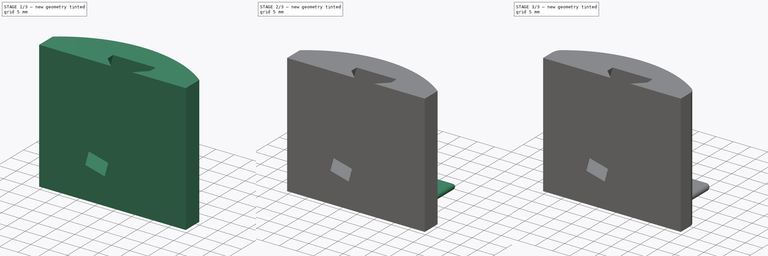
[diagram: build sequence overview — one tinted view per stage of 3, left to right]
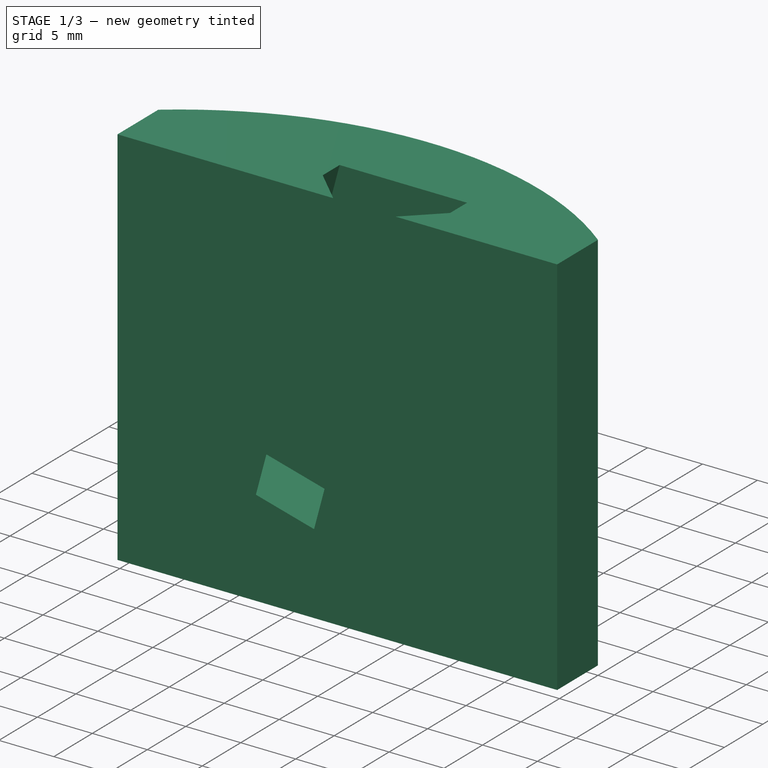
[diagram: stage 1 of 3 — iso view after this stage's code; geometry added in this stage tinted green]
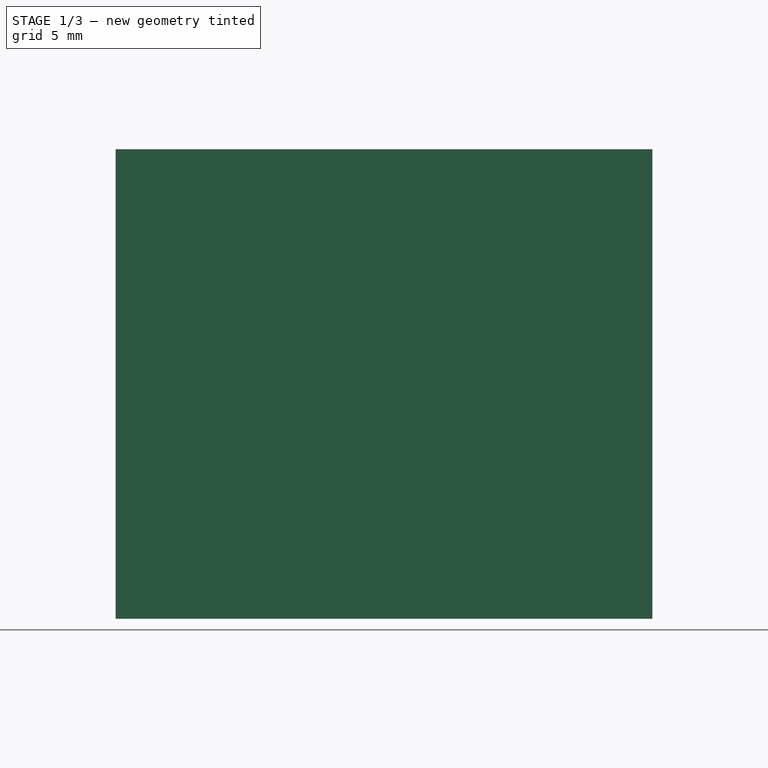
[diagram: stage 1 of 3 — front view after this stage's code; geometry added in this stage tinted green]
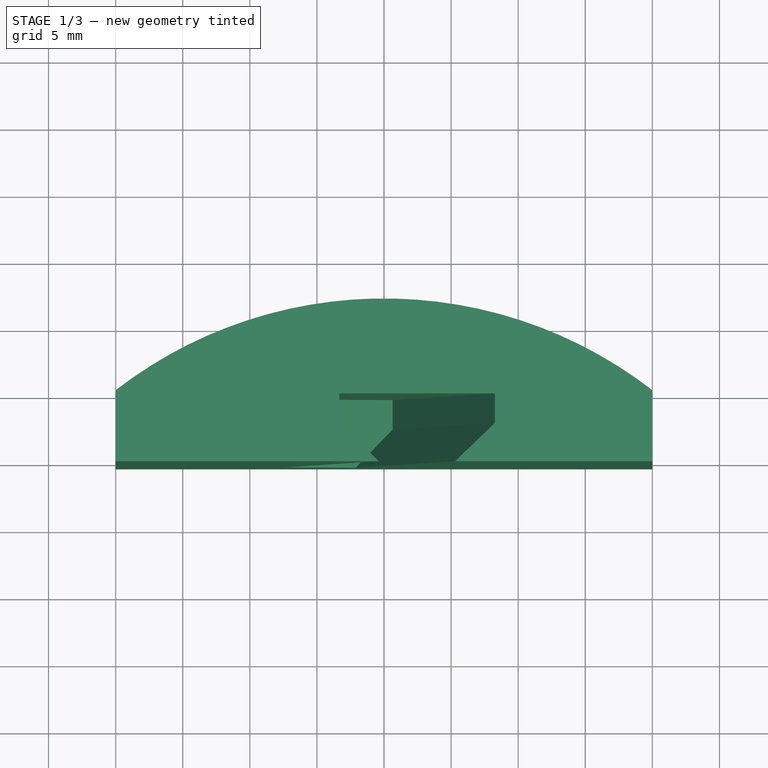
[diagram: stage 1 of 3 — top view after this stage's code; geometry added in this stage tinted green]
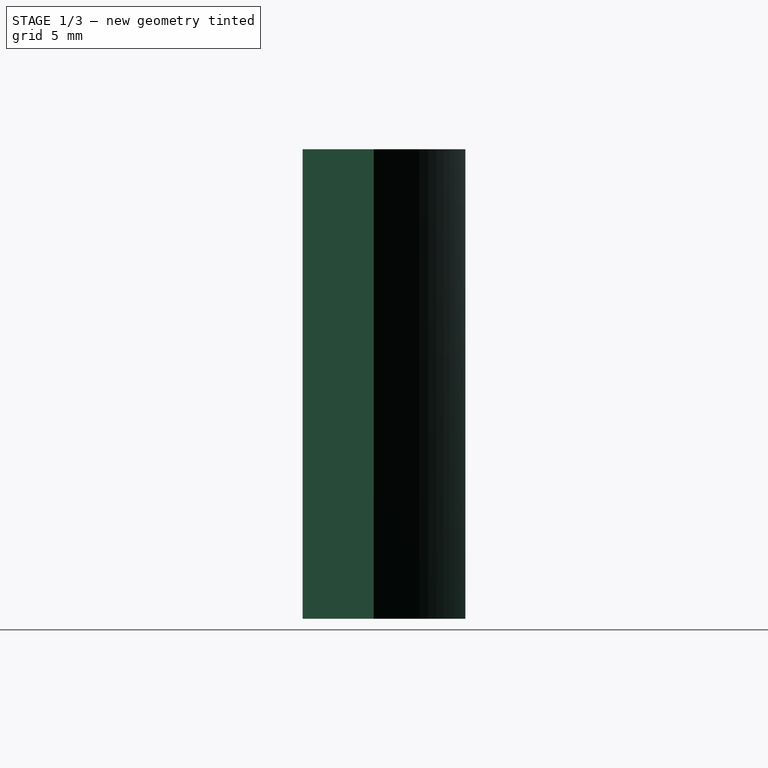
[diagram: stage 1 of 3 — right view after this stage's code; geometry added in this stage tinted green]
FCSTD DOCUMENT  (FreeCAD 0.18.4R)
Label: Soporte_v2
License: All rights reserved
LicenseURL: http://en.wikipedia.org/wiki/All_rights_reserved
objects: Sketcher::SketchObject×4, PartDesign::Fillet×3, PartDesign::Pad×2, PartDesign::Pocket×1, PartDesign::Body×1
note: 14 computed .brp shape members not serialized (recipe doc carries the construction recipe); baked Part::Feature solids carry a one-line shape summary decoded from their .brp

FEATURE [Sketcher::SketchObject] Sketch
  MapMode = 5
  Support = -> [XY_Plane]
  sketch-geometry (4):
    g0: ArcOfCircle CenterX=3.7294e-12 CenterY=-25.8394 CenterZ=0 NormalX=0 NormalY=0 NormalZ=1 AngleXU=0 Radius=32.6753 StartAngle=0.912103 EndAngle=2.22949
    g1: LineSegment StartX=20 StartY=2.8919e-12 StartZ=0 EndX=20 EndY=-5.3 EndZ=0
    g2: LineSegment StartX=-20 StartY=-5.3 StartZ=0 EndX=-20 EndY=-2.8777e-12 EndZ=0
    g3: LineSegment StartX=20 StartY=-5.3 StartZ=0 EndX=-20 EndY=-5.3 EndZ=0
  constraints (10):
    c: Symmetric(g0,g0,g-1)
    c: Distance(g0,g0) = 40
    c: Coincident(g3,g2)
    c: Vertical(g1)
    c: Vertical(g2)
    c: Distance(g2) = 5.3
    c: Coincident(g0,g2)
    c: Equal(g1,g2)
    c: Coincident(g0,g1)
    c: Coincident(g3,g1)
FEATURE [PartDesign::Pad] Pad
  Length = 35
  Length2 = 100
  Profile = -> Sketch
  Type = 0
FEATURE [Sketcher::SketchObject] Sketch001
  MapMode = 5
  Placement = pos=(0,0,35) rot=(0,0,1;0rad)
  Support = -> [Pad]
  sketch-geometry (6):
    g0: LineSegment StartX=-5.6 StartY=-1.22454 StartZ=0 EndX=5.6 EndY=-1.22454 EndZ=0
    g1: LineSegment StartX=5.6 StartY=-1.22454 StartZ=0 EndX=5.6 EndY=-3.12738 EndZ=0
    g2: LineSegment StartX=5.6 StartY=-3.12738 StartZ=0 EndX=2.20182 EndY=-6.32738 EndZ=0
    g3: LineSegment StartX=2.20182 StartY=-6.32738 StartZ=0 EndX=-2.20182 EndY=-6.32738 EndZ=0
    g4: LineSegment StartX=-2.20182 StartY=-6.32738 StartZ=0 EndX=-5.6 EndY=-3.12738 EndZ=0
    g5: LineSegment StartX=-5.6 StartY=-3.12738 StartZ=0 EndX=-5.6 EndY=-1.22454 EndZ=0
  constraints (13):
    c: Coincident(g0,g1)
    c: Coincident(g1,g2)
    c: Coincident(g2,g3)
    c: Coincident(g3,g4)
    c: Coincident(g4,g5)
    c: Coincident(g5,g0)
    c: Vertical(g5)
    c: Vertical(g1)
    c: Equal(g5,g1)
    c: Symmetric(g0,g0,g-2)
    c: Symmetric(g3,g2,g-2)
    c: Distance(g0) = 11.2
    c: DistanceY(g3,g4) = 3.2
FEATURE [Sketcher::SketchObject] Sketch002
  MapMode = 5
  Placement = pos=(3,0,37) rot=(0,1,0;0.261799rad)
  sketch-geometry (6):
    g0: LineSegment StartX=-5.6 StartY=-0.240433 StartZ=0 EndX=5.6 EndY=-0.240433 EndZ=0
    g1: LineSegment StartX=5.6 StartY=-0.240433 StartZ=0 EndX=5.6 EndY=-2.44043 EndZ=0
    g2: LineSegment StartX=5.6 StartY=-2.44043 StartZ=0 EndX=2.7 EndY=-5.34043 EndZ=0
    g3: LineSegment StartX=2.7 StartY=-5.34043 StartZ=0 EndX=-2.7 EndY=-5.34043 EndZ=0
    g4: LineSegment StartX=-2.7 StartY=-5.34043 StartZ=0 EndX=-5.6 EndY=-2.44043 EndZ=0
    g5: LineSegment StartX=-5.6 StartY=-2.44043 StartZ=0 EndX=-5.6 EndY=-0.240433 EndZ=0
  constraints (15):
    c: Coincident(g0,g1)
    c: Coincident(g1,g2)
    c: Coincident(g2,g3)
    c: Coincident(g3,g4)
    c: Coincident(g4,g5)
    c: Coincident(g5,g0)
    c: Vertical(g5)
    c: Vertical(g1)
    c: Angle(g4,g5) = 2.35619
    c: Symmetric(g0,g0,g-2)
    c: Symmetric(g3,g2,g-2)
    c: Distance(g0) = 11.2
    c: Equal(g5,g1)
    c: Distance(g5) = 2.2
    c: DistanceY(g3,g4) = 2.9
FEATURE [PartDesign::Pocket] Pocket
  BaseFeature = -> Pad
  Length = 30
  Length2 = 100
  Profile = -> Sketch002
  Type = 0
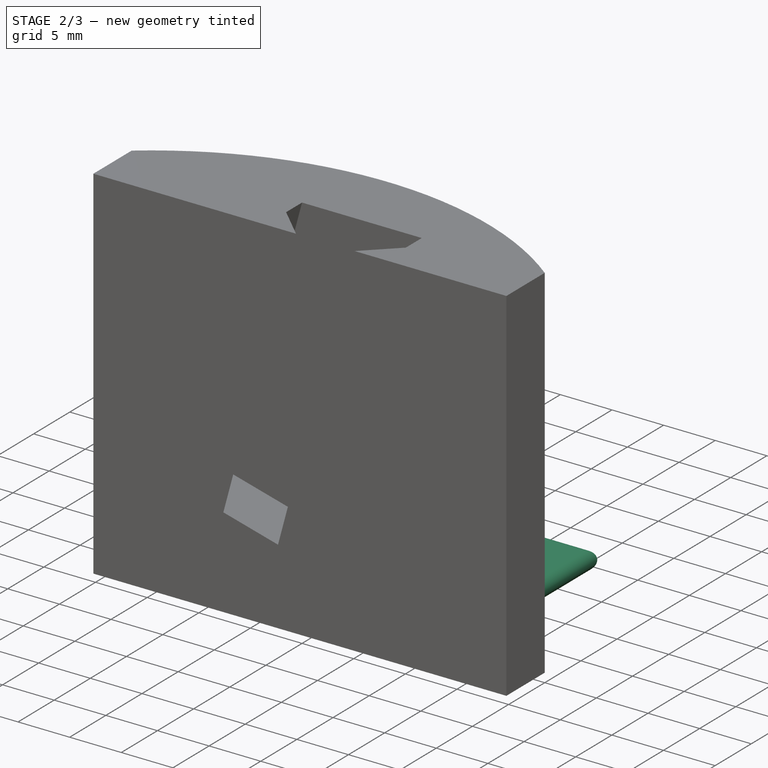
[diagram: stage 2 of 3 — iso view after this stage's code; geometry added in this stage tinted green]
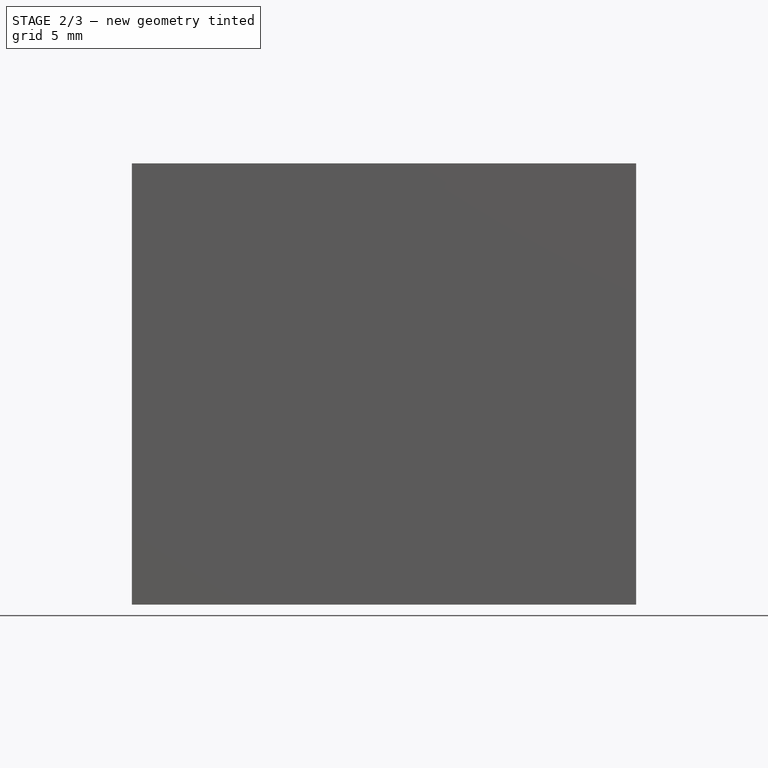
[diagram: stage 2 of 3 — front view after this stage's code; geometry added in this stage tinted green]
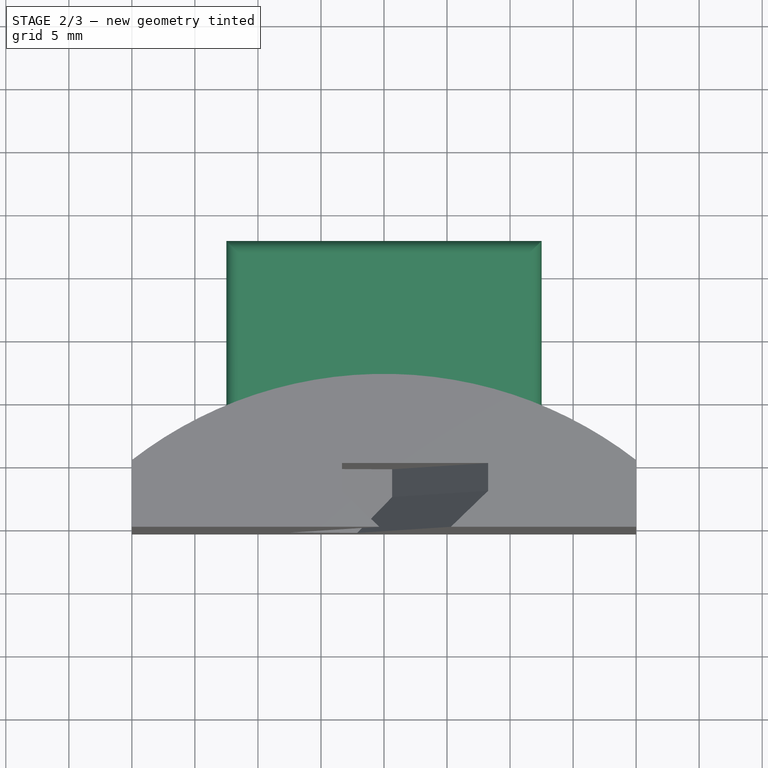
[diagram: stage 2 of 3 — top view after this stage's code; geometry added in this stage tinted green]
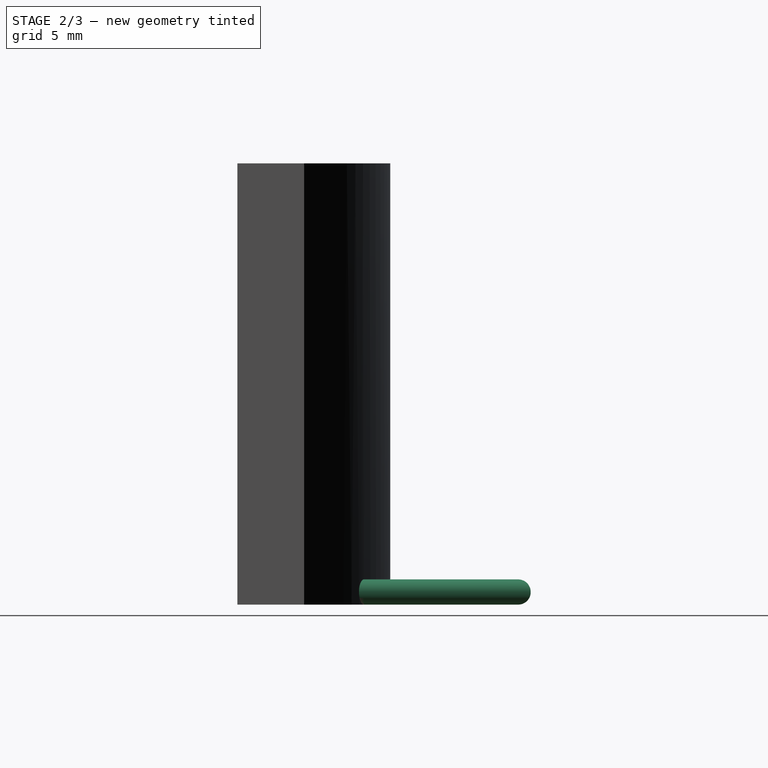
[diagram: stage 2 of 3 — right view after this stage's code; geometry added in this stage tinted green]
FEATURE [Sketcher::SketchObject] Sketch003
  MapMode = 5
  Placement = pos=(0,0,0) rot=(1,0,0;3.14159rad)
  Support = -> [Pocket]
  sketch-geometry (4):
    g0: LineSegment StartX=-12.5 StartY=-2.9706 StartZ=0 EndX=12.5 EndY=-2.9706 EndZ=0
    g1: LineSegment StartX=12.5 StartY=-2.9706 StartZ=0 EndX=12.5 EndY=-17.9706 EndZ=0
    g2: LineSegment StartX=12.5 StartY=-17.9706 StartZ=0 EndX=-12.5 EndY=-17.9706 EndZ=0
    g3: LineSegment StartX=-12.5 StartY=-17.9706 StartZ=0 EndX=-12.5 EndY=-2.9706 EndZ=0
  constraints (10):
    c: Coincident(g0,g1)
    c: Coincident(g1,g2)
    c: Coincident(g2,g3)
    c: Coincident(g3,g0)
    c: Horizontal(g2)
    c: Vertical(g1)
    c: Vertical(g3)
    c: Symmetric(g0,g0,g-2)
    c: Distance(g0) = 25
    c: Distance(g3) = 15
FEATURE [PartDesign::Pad] Pad001
  BaseFeature = -> Pocket
  Length = 2
  Length2 = 100
  Profile = -> Sketch003
  Reversed = true
  Type = 0
FEATURE [PartDesign::Fillet] Fillet
  Base = -> Pad001 [Edge18,Edge19,Edge17,Edge20,Edge37,Edge15]
  BaseFeature = -> Pad001
  Radius = 0.99
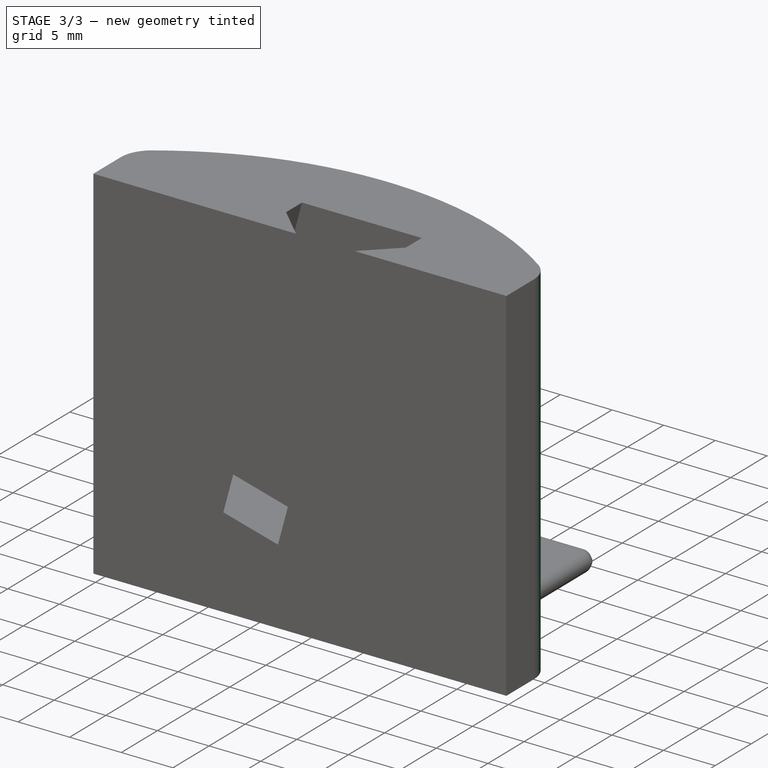
[diagram: stage 3 of 3 — iso view after this stage's code; geometry added in this stage tinted green]
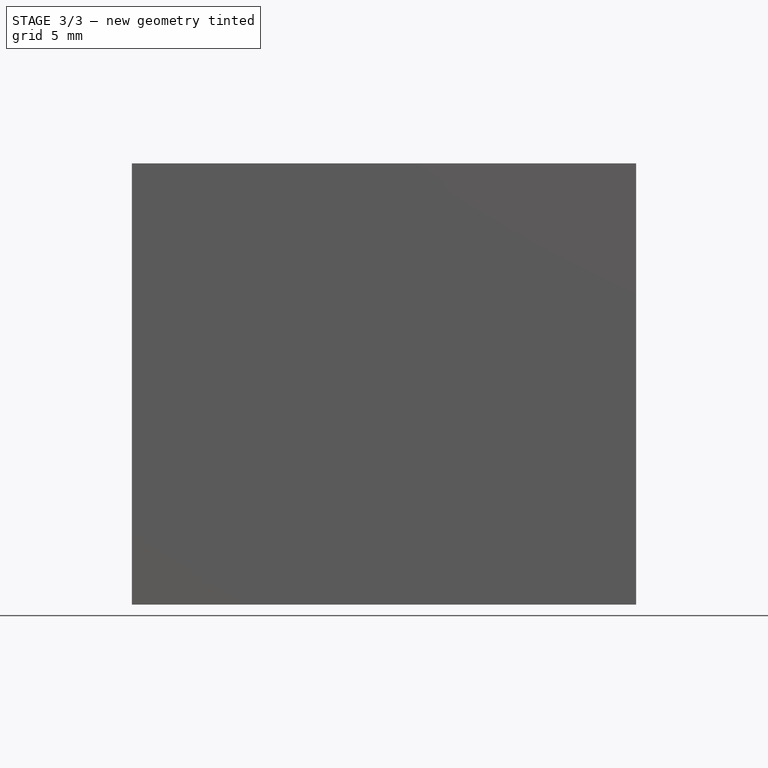
[diagram: stage 3 of 3 — front view after this stage's code; geometry added in this stage tinted green]
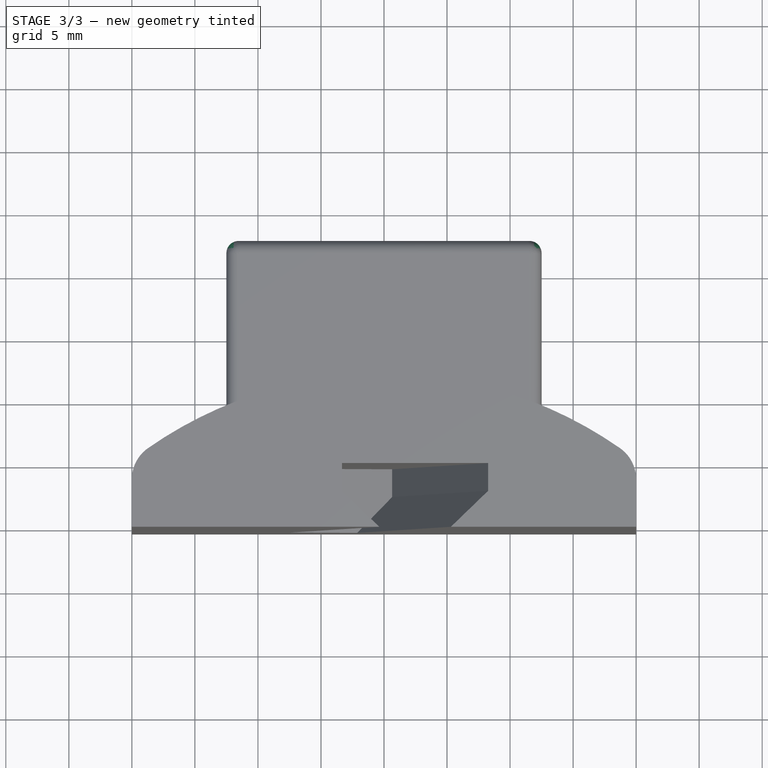
[diagram: stage 3 of 3 — top view after this stage's code; geometry added in this stage tinted green]
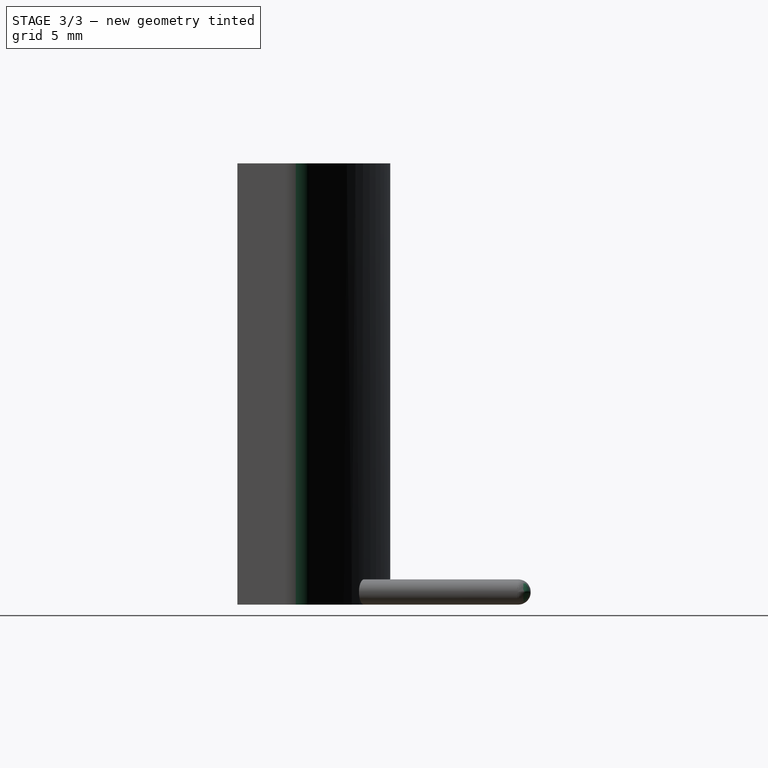
[diagram: stage 3 of 3 — right view after this stage's code; geometry added in this stage tinted green]
FEATURE [PartDesign::Fillet] Fillet001
  Base = -> Fillet [Edge28,Edge57,Edge51,Edge20]
  BaseFeature = -> Fillet
  Radius = 0.96
FEATURE [PartDesign::Fillet] Fillet002
  Base = -> Fillet001 [Edge25,Edge21]
  BaseFeature = -> Fillet001
  Radius = 3
FEATURE [PartDesign::Body] Body
  Group = -> [Sketch,Pad,Sketch001,Sketch002,Pocket,Sketch003,Pad001,Fillet,Fillet001,Fillet002]
  Origin = -> Origin
  Tip = -> Fillet002
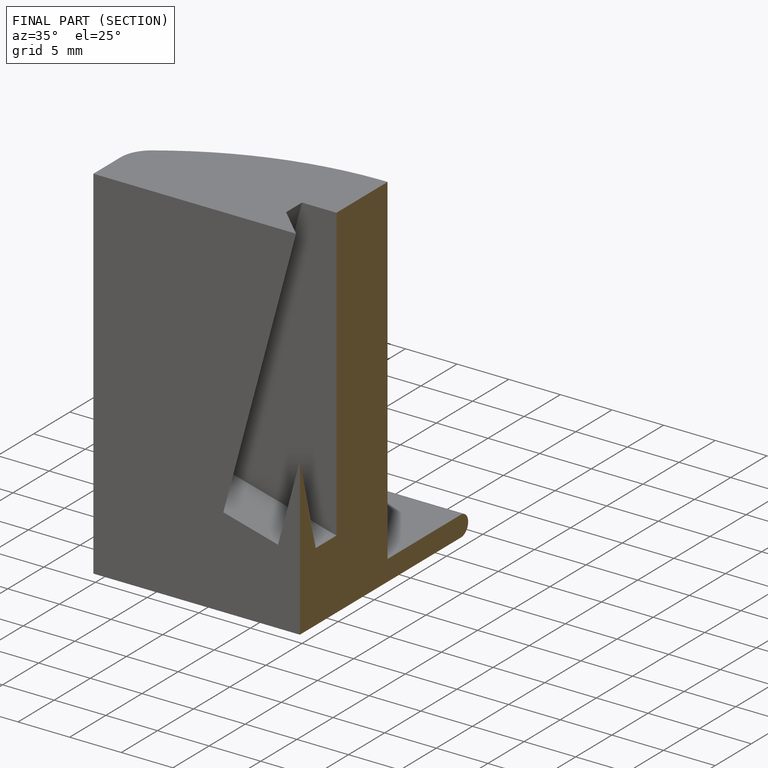
[diagram: finished part — half-section view (interior)]
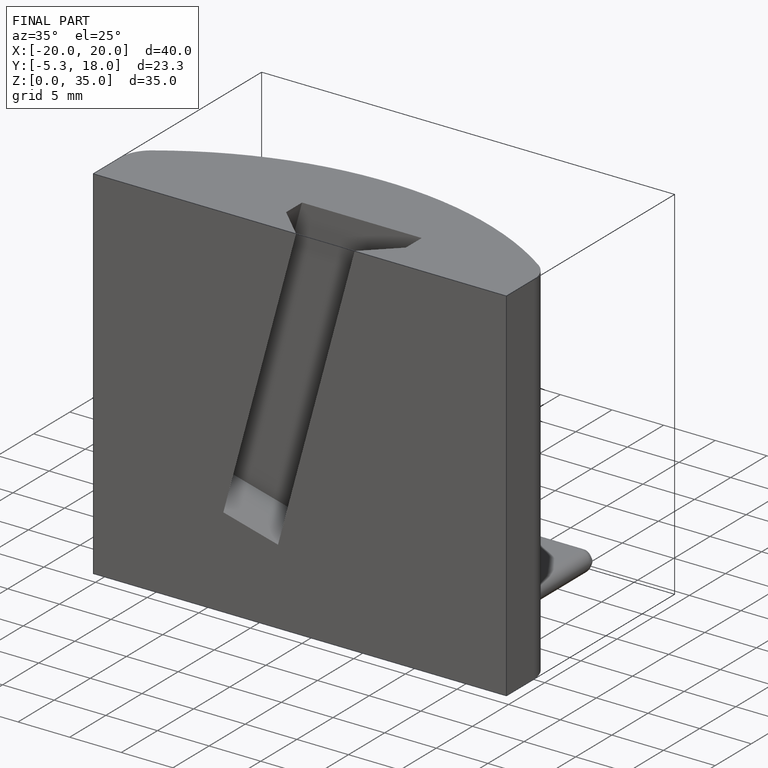
[diagram: finished part — iso view with bounding-box wireframe]
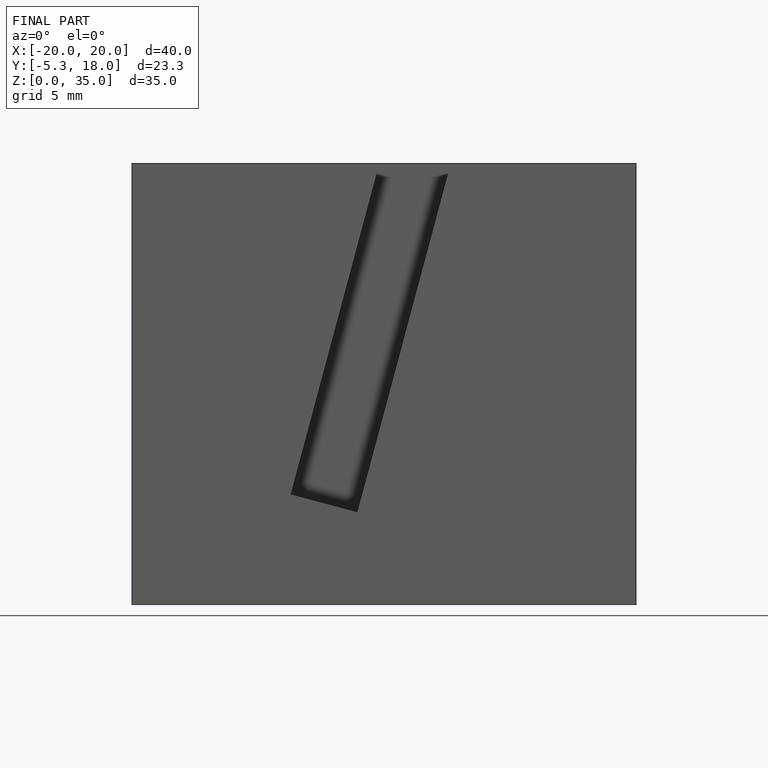
[diagram: finished part — front view with bounding-box wireframe]
